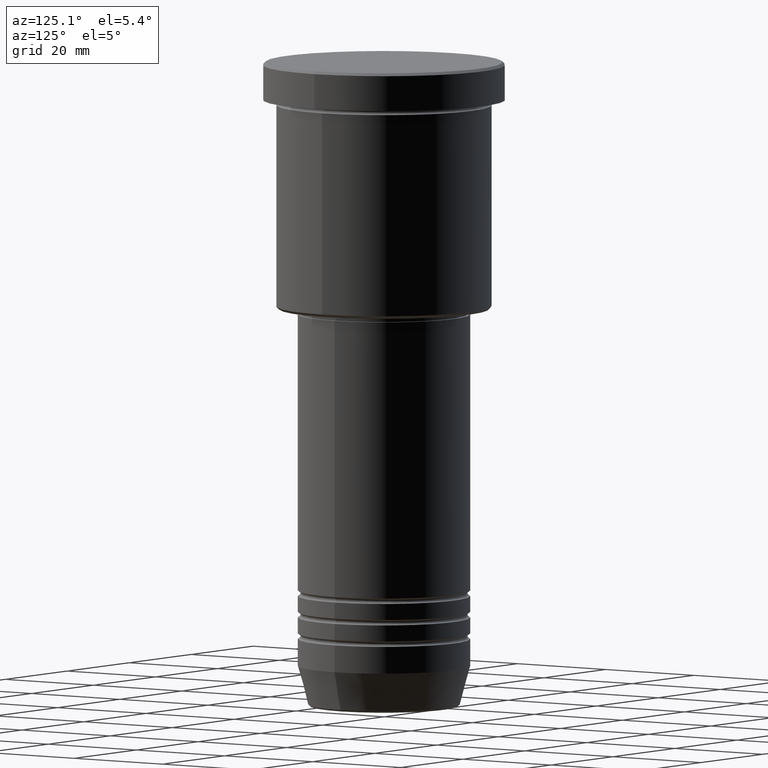
[diagram: clean part render]
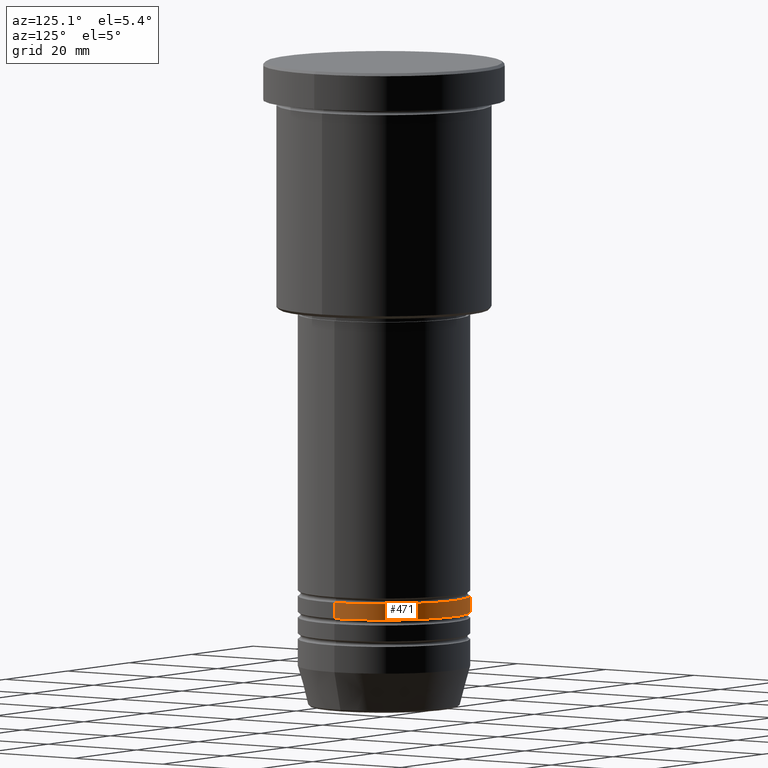
[diagram: same view with one face highlighted and labeled with its STEP entity id]
A machine part, auxiliary view. The second image highlights one B-rep face of the part: STEP entity #471.
In plain terms, the highlighted cylindrical surface (partial cylindrical patch) has radius 16 mm, axis along (-0, -0, 1).
Its self-contained STEP definition (entity closure, byte-faithful):
#12 = DIRECTION ( 'NONE',  ( -0.000000000000000000, -0.000000000000000000, 1.000000000000000000 ) ) ;
#67 = CARTESIAN_POINT ( 'NONE',  ( 0.000000000000000000, 0.000000000000000000, -99.49999999999997158 ) ) ;
#74 = EDGE_CURVE ( 'NONE', #886, #397, #386, .T. ) ;
#100 = ORIENTED_EDGE ( 'NONE', *, *, #74, .T. ) ;
#142 = CARTESIAN_POINT ( 'NONE',  ( 16.00000000000000000, 0.000000000000000000, -99.49999999999997158 ) ) ;
#189 = VECTOR ( 'NONE', #474, 1000.000000000000000 ) ;
#230 = AXIS2_PLACEMENT_3D ( 'NONE', #1011, #12, #960 ) ;
#262 = DIRECTION ( 'NONE',  ( 1.000000000000000000, 0.000000000000000000, 0.000000000000000000 ) ) ;
#276 = EDGE_CURVE ( 'NONE', #839, #293, #1145, .T. ) ;
#293 = VERTEX_POINT ( 'NONE', #142 ) ;
#334 = ORIENTED_EDGE ( 'NONE', *, *, #808, .F. ) ;
#386 = LINE ( 'NONE', #744, #189 ) ;
#389 = VECTOR ( 'NONE', #583, 1000.000000000000000 ) ;
#397 = VERTEX_POINT ( 'NONE', #830 ) ;
#431 = DIRECTION ( 'NONE',  ( -0.000000000000000000, -0.000000000000000000, 1.000000000000000000 ) ) ;
#449 = CARTESIAN_POINT ( 'NONE',  ( 16.00000000000000355, 0.000000000000000000, -102.4999999999999858 ) ) ;
#461 = CARTESIAN_POINT ( 'NONE',  ( -16.00000000000000355, 1.959434878635765526E-15, -102.4999999999999858 ) ) ;
#471 = ADVANCED_FACE ( 'NONE', ( #957 ), #520, .T. ) ;
#474 = DIRECTION ( 'NONE',  ( -0.000000000000000000, -0.000000000000000000, 1.000000000000000000 ) ) ;
#520 = CYLINDRICAL_SURFACE ( 'NONE', #1016, 16.00000000000000000 ) ;
#583 = DIRECTION ( 'NONE',  ( -0.000000000000000000, -0.000000000000000000, 1.000000000000000000 ) ) ;
#592 = EDGE_LOOP ( 'NONE', ( #667, #100, #334, #1165 ) ) ;
#622 = CIRCLE ( 'NONE', #986, 16.00000000000000000 ) ;
#667 = ORIENTED_EDGE ( 'NONE', *, *, #727, .T. ) ;
#690 = CIRCLE ( 'NONE', #230, 16.00000000000000355 ) ;
#704 = DIRECTION ( 'NONE',  ( -0.000000000000000000, -0.000000000000000000, 1.000000000000000000 ) ) ;
#727 = EDGE_CURVE ( 'NONE', #839, #886, #690, .T. ) ;
#744 = CARTESIAN_POINT ( 'NONE',  ( -16.00000000000000000, 1.959434878635765131E-15, 0.000000000000000000 ) ) ;
#808 = EDGE_CURVE ( 'NONE', #293, #397, #622, .T. ) ;
#830 = CARTESIAN_POINT ( 'NONE',  ( -16.00000000000000000, 1.959434878635765131E-15, -99.49999999999997158 ) ) ;
#839 = VERTEX_POINT ( 'NONE', #449 ) ;
#886 = VERTEX_POINT ( 'NONE', #461 ) ;
#888 = DIRECTION ( 'NONE',  ( 1.000000000000000000, 0.000000000000000000, 0.000000000000000000 ) ) ;
#928 = CARTESIAN_POINT ( 'NONE',  ( 16.00000000000000000, 0.000000000000000000, 0.000000000000000000 ) ) ;
#957 = FACE_OUTER_BOUND ( 'NONE', #592, .T. ) ;
#960 = DIRECTION ( 'NONE',  ( 1.000000000000000000, 0.000000000000000000, 0.000000000000000000 ) ) ;
#986 = AXIS2_PLACEMENT_3D ( 'NONE', #67, #704, #888 ) ;
#1011 = CARTESIAN_POINT ( 'NONE',  ( 0.000000000000000000, 0.000000000000000000, -102.4999999999999858 ) ) ;
#1016 = AXIS2_PLACEMENT_3D ( 'NONE', #1063, #431, #262 ) ;
#1063 = CARTESIAN_POINT ( 'NONE',  ( 0.000000000000000000, 0.000000000000000000, 0.000000000000000000 ) ) ;
#1145 = LINE ( 'NONE', #928, #389 ) ;
#1165 = ORIENTED_EDGE ( 'NONE', *, *, #276, .F. ) ;